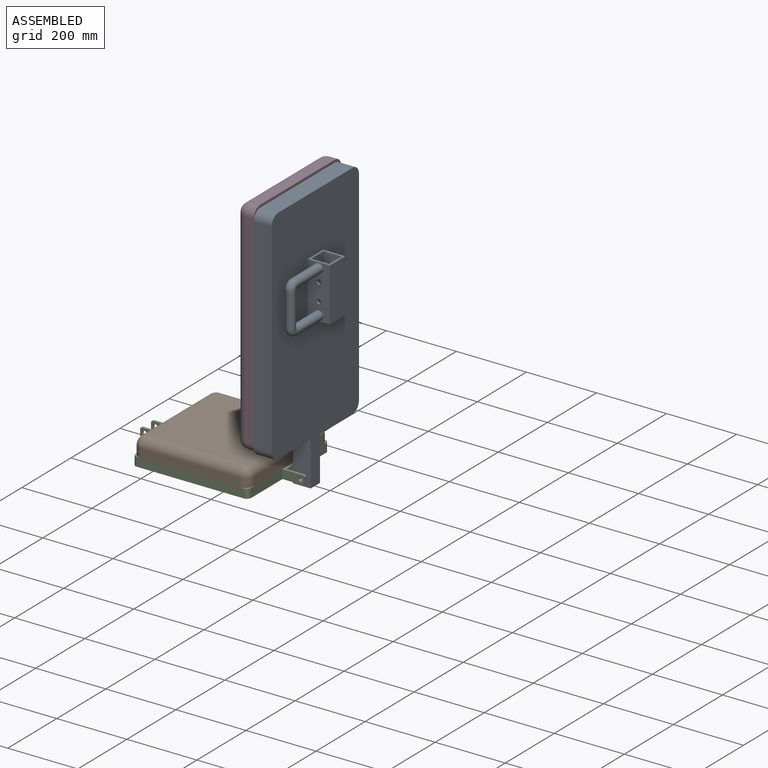
[diagram: assembled view]
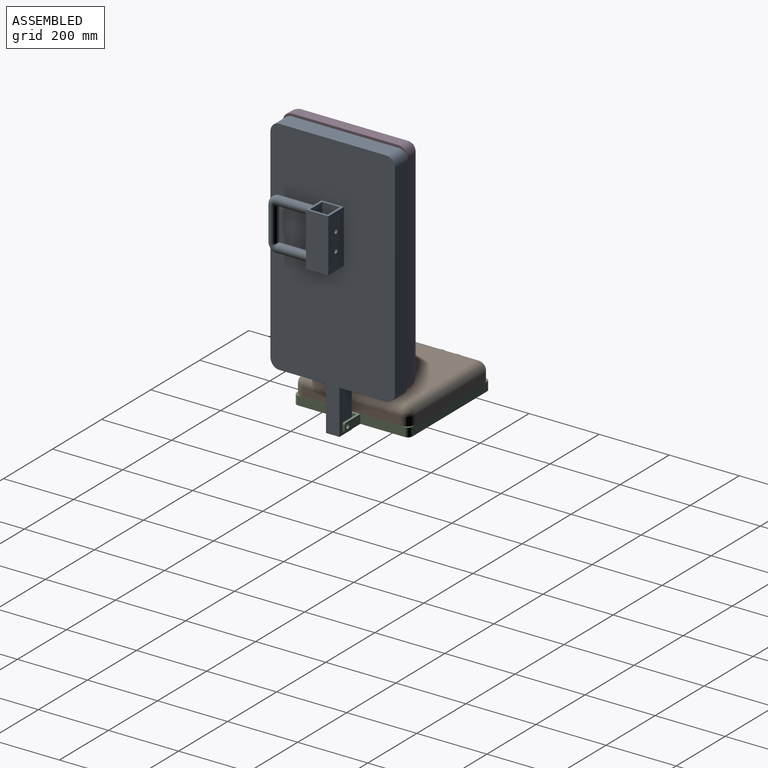
[diagram: assembled view, second angle]
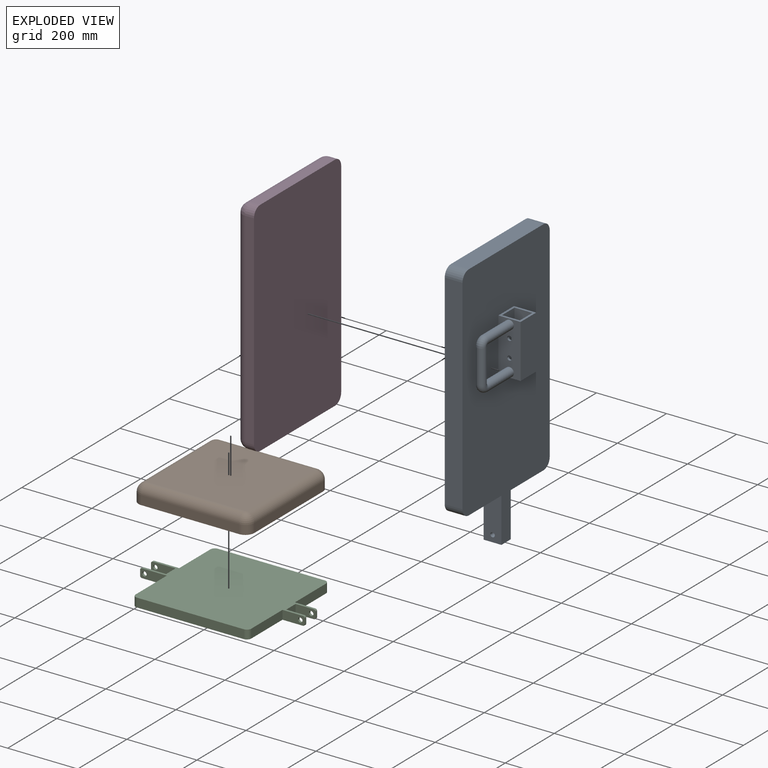
[diagram: exploded view]
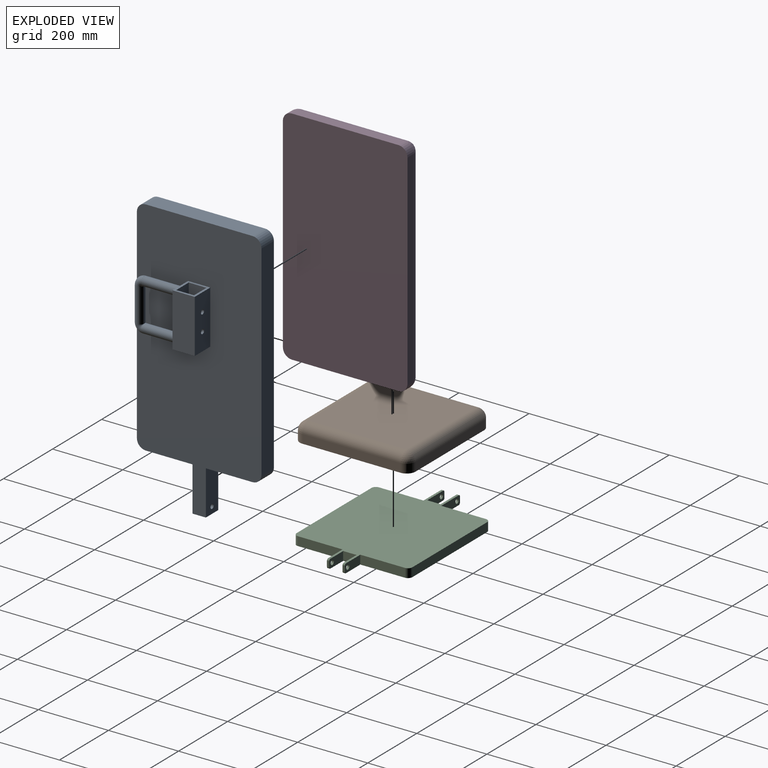
[diagram: exploded view, second angle]
ASSEMBLY  parts=4 mates=3
PART A: 35 faces, bbox 114.3x355.6x762 mm
  f0: plane 133.35x50.8mm, normal (0,0,-1), area 6774.2mm2, adj f2,f9,f10,f28
  f1: plane 133.35x50.8mm, normal (0,0,-1), area 6774.2mm2, adj f8,f9,f10,f27
  f2: cylinder r=25.4mm len=50.8mm, axis (-1,0,0), area 2026.8mm2, adj f0,f3,f9,f10
  f3: plane 584.2x50.8mm, normal (0,1,0), area 29677.4mm2, adj f2,f4,f9,f10
  f4: cylinder r=25.4mm len=50.8mm, axis (-1,0,0), area 2026.8mm2, adj f3,f5,f9,f10
  f5: plane 304.8x50.8mm, normal (0,0,1), area 15483.8mm2, adj f4,f6,f9,f10
  f6: cylinder r=25.4mm len=50.8mm, axis (-1,0,0), area 2026.8mm2, adj f5,f7,f9,f10
  f7: plane 584.2x50.8mm, normal (0,-1,0), area 29677.4mm2, adj f6,f8,f9,f10
  f8: cylinder r=25.4mm len=50.8mm, axis (-1,0,0), area 2026.8mm2, adj f1,f7,f9,f10
  f9: plane 762x355.6mm, normal (1,0,0), area 230090.9mm2, adj f0,f1,f2,f3,f4,f5,f6,f7
  f10: plane 762x355.6mm, normal (-1,0,0), area 220413.5mm2, adj f0,f1,f2,f3,f4,f5,f6,f7
  f11: plane 63.5x63.5mm, normal (0,0,-1), area 1451.6mm2, adj f10,f12,f14,f15,f16,f17,f18,f19
  f12: plane 152.4x63.5mm, normal (0,-1,0), area 9424mm2, adj f10,f11,f13,f15,f20,f21
  f13: plane 63.5x63.5mm, normal (0,0,1), area 1451.6mm2, adj f10,f12,f14,f15,f16,f17,f18,f19
  f14: plane 152.4x63.5mm, normal (0,1,0), area 8410.6mm2, adj f10,f11,f13,f15,f22,f23,f24,f26
  f15: plane 152.4x63.5mm, normal (-1,0,0), area 9677.4mm2, adj f11,f12,f13,f14
  f16: plane 152.4x50.8mm, normal (-1,0,0), area 7741.9mm2, adj f11,f13,f17,f19
  f17: plane 152.4x50.8mm, normal (0,-1,0), area 7488.6mm2, adj f11,f13,f16,f18,f22,f23
  f18: plane 152.4x50.8mm, normal (1,0,0), area 7741.9mm2, adj f11,f13,f17,f19
  f19: plane 152.4x50.8mm, normal (0,1,0), area 7488.6mm2, adj f11,f13,f16,f18,f20,f21
  f20: cylinder r=6.35mm len=12.7mm, axis (0,1,0), area 253.4mm2, adj f12,f19
  f21: cylinder r=6.35mm len=12.7mm, axis (0,1,0), area 253.4mm2, adj f12,f19
  f22: cylinder r=6.35mm len=12.7mm, axis (0,1,0), area 253.4mm2, adj f14,f17
  f23: cylinder r=6.35mm len=12.7mm, axis (0,1,0), area 253.4mm2, adj f14,f17
  f24: cylinder r=12.7mm len=101.6mm, axis (0,-1,0), area 8107.3mm2, adj f14,f25,f31
  f25: plane 25.4x12.76mm, normal (0,1,0), area 3.2mm2, adj f24,f34
  f26: cylinder r=12.7mm len=101.6mm, axis (0,-1,0), area 8107.3mm2, adj f14,f32
  f27: plane 127x50.8mm, normal (0,-1,0), area 6324.9mm2, adj f1,f9,f10,f29,f30
  f28: plane 127x50.8mm, normal (0,1,0), area 6324.9mm2, adj f0,f9,f10,f29,f30
  f29: plane 50.8x38.1mm, normal (0,0,-1), area 1935.5mm2, adj f9,f10,f27,f28
  f30: cylinder r=6.35mm len=38.1mm, axis (0,1,0), area 1520.1mm2, adj f27,f28
  f31: plane 25.4x12.76mm, normal (0,-1,0), area 3.2mm2, adj f24,f34
  f32: torus R=12.7mm, axis (1,0,0), area 1592.4mm2, adj f26,f33
  f33: cylinder r=12.7mm len=96.64mm, axis (0,0,1), area 7711.3mm2, adj f32,f34
  f34: torus R=12.7mm, axis (1,0,0), area 1592.4mm2, adj f25,f31,f33
PART B: 18 faces, bbox 330.2x330.2x50.8 mm
  f0: plane 279.4x25.4mm, normal (0,-1,0), area 7096.8mm2, adj f5,f8,f14,f17
  f1: plane 279.4x25.4mm, normal (1,0,0), area 7096.8mm2, adj f5,f11,f15,f17
  f2: plane 279.4x25.4mm, normal (0,1,0), area 7096.8mm2, adj f5,f6,f10,f11
  f3: plane 279.4x25.4mm, normal (-1,0,0), area 7096.8mm2, adj f5,f6,f8,f9
  f4: plane 279.4x279.4mm, normal (0,0,1), area 78064.4mm2, adj f9,f10,f14,f15
  f5: plane 330.2x330.2mm, normal (0,0,-1), area 108478.2mm2, adj f0,f1,f2,f3,f6,f8,f11,f17
  f6: cylinder r=25.4mm len=25.4mm, axis (0,0,-1), area 1013.4mm2, adj f2,f3,f5,f7
  f7: sphere r=25.4mm, area 1013.4mm2, adj f6,f9,f10
  f8: cylinder r=25.4mm len=25.4mm, axis (0,0,1), area 1013.4mm2, adj f0,f3,f5,f12
  f9: cylinder r=25.4mm len=279.4mm, axis (0,1,0), area 11147.6mm2, adj f3,f4,f7,f12
  f10: cylinder r=25.4mm len=279.4mm, axis (1,0,0), area 11147.6mm2, adj f2,f4,f7,f13
  f11: cylinder r=25.4mm len=25.4mm, axis (0,0,1), area 1013.4mm2, adj f1,f2,f5,f13
  f12: sphere r=25.4mm, area 1013.4mm2, adj f8,f9,f14
  f13: sphere r=25.4mm, area 1013.4mm2, adj f10,f11,f15
  f14: cylinder r=25.4mm len=279.4mm, axis (-1,0,0), area 11147.6mm2, adj f0,f4,f12,f16
  f15: cylinder r=25.4mm len=279.4mm, axis (0,-1,0), area 11147.6mm2, adj f1,f4,f13,f16
  f16: sphere r=25.4mm, area 1013.4mm2, adj f14,f15,f17
  f17: cylinder r=25.4mm len=25.4mm, axis (0,0,-1), area 1013.4mm2, adj f0,f1,f5,f16
PART C: 38 faces, bbox 469.9x330.2x25.4 mm
  f0: plane 459.74x330.2mm, normal (0,0,-1), area 111022.6mm2, adj f3,f5,f7,f8,f9,f10,f11,f12
  f1: plane 459.74x330.2mm, normal (0,0,1), area 111022.6mm2, adj f4,f5,f7,f8,f9,f10,f11,f12
  f2: plane 15.24x6.35mm, normal (1,0,0), area 96.8mm2, adj f3,f4,f28,f33
  f3: cylinder r=5.08mm len=6.35mm, axis (0,1,0), area 50.7mm2, adj f0,f2,f28,f33
  f4: cylinder r=5.08mm len=6.35mm, axis (0,-1,0), area 50.7mm2, adj f1,f2,f28,f33
  f5: plane 127x25.4mm, normal (1,0,0), area 3225.8mm2, adj f0,f1,f24,f28
  f6: plane 15.24x6.35mm, normal (-1,0,0), area 96.8mm2, adj f12,f17,f20,f21
  f7: plane 127x25.4mm, normal (-1,0,0), area 3225.8mm2, adj f0,f1,f12,f26
  f8: plane 304.8x25.4mm, normal (0,-1,0), area 7741.9mm2, adj f0,f1,f24,f27
  f9: plane 127x25.4mm, normal (1,0,0), area 3225.8mm2, adj f0,f1,f25,f29
  f10: plane 304.8x25.4mm, normal (0,1,0), area 7741.9mm2, adj f0,f1,f25,f26
  f11: plane 127x25.4mm, normal (-1,0,0), area 3225.8mm2, adj f0,f1,f13,f27
  f12: plane 76.2x25.4mm, normal (0,1,0), area 1797.7mm2, adj f0,f1,f6,f7,f20,f21,f22
  f13: plane 76.2x25.4mm, normal (0,-1,0), area 1797.7mm2, adj f0,f1,f11,f14,f18,f19,f23
  f14: plane 15.24x6.35mm, normal (-1,0,0), area 96.8mm2, adj f13,f15,f18,f19
  f15: plane 69.85x25.4mm, normal (0,1,0), area 1636.4mm2, adj f0,f1,f14,f16,f18,f19,f23
  f16: plane 38.1x25.4mm, normal (-1,0,0), area 967.7mm2, adj f0,f1,f15,f17
  f17: plane 69.85x25.4mm, normal (0,-1,0), area 1636.4mm2, adj f0,f1,f6,f16,f20,f21,f22
  f18: cylinder r=5.08mm len=6.35mm, axis (0,-1,0), area 50.7mm2, adj f1,f13,f14,f15
  f19: cylinder r=5.08mm len=6.35mm, axis (0,1,0), area 50.7mm2, adj f0,f13,f14,f15
  f20: cylinder r=5.08mm len=6.35mm, axis (0,1,0), area 50.7mm2, adj f0,f6,f12,f17
  f21: cylinder r=5.08mm len=6.35mm, axis (0,-1,0), area 50.7mm2, adj f1,f6,f12,f17
  f22: cylinder r=6.35mm len=12.7mm, axis (0,-1,0), area 253.4mm2, adj f12,f17
  f23: cylinder r=6.35mm len=12.7mm, axis (0,-1,0), area 253.4mm2, adj f13,f15
  f24: cylinder r=12.7mm len=25.4mm, axis (0,0,-1), area 506.7mm2, adj f0,f1,f5,f8
  f25: cylinder r=12.7mm len=25.4mm, axis (0,0,1), area 506.7mm2, adj f0,f1,f9,f10
  f26: cylinder r=12.7mm len=25.4mm, axis (0,0,-1), area 506.7mm2, adj f0,f1,f7,f10
  f27: cylinder r=12.7mm len=25.4mm, axis (0,0,1), area 506.7mm2, adj f0,f1,f8,f11
  f28: plane 63.5x25.4mm, normal (0,-1,0), area 1475.1mm2, adj f0,f1,f2,f3,f4,f5,f37
  f29: plane 63.5x25.4mm, normal (0,1,0), area 1475.1mm2, adj f0,f1,f9,f30,f31,f32,f36
  f30: plane 15.24x6.35mm, normal (1,0,0), area 96.8mm2, adj f29,f31,f32,f34
  f31: cylinder r=5.08mm len=6.35mm, axis (0,1,0), area 50.7mm2, adj f0,f29,f30,f34
  f32: cylinder r=5.08mm len=6.35mm, axis (0,-1,0), area 50.7mm2, adj f1,f29,f30,f34
  f33: plane 57.15x25.4mm, normal (0,1,0), area 1313.9mm2, adj f0,f1,f2,f3,f4,f35,f37
  f34: plane 57.15x25.4mm, normal (0,-1,0), area 1313.9mm2, adj f0,f1,f30,f31,f32,f35,f36
  f35: plane 38.1x25.4mm, normal (1,0,0), area 967.7mm2, adj f0,f1,f33,f34
  f36: cylinder r=6.35mm len=12.7mm, axis (0,-1,0), area 253.4mm2, adj f29,f34
  f37: cylinder r=6.35mm len=12.7mm, axis (0,-1,0), area 253.4mm2, adj f28,f33
PART D: 18 faces, bbox 50.8x355.6x635 mm
  f0: plane 584.2x25.4mm, normal (0,1,0), area 14838.7mm2, adj f5,f8,f14,f17
  f1: plane 304.8x25.4mm, normal (0,0,1), area 7741.9mm2, adj f5,f11,f15,f17
  f2: plane 584.2x25.4mm, normal (0,-1,0), area 14838.7mm2, adj f5,f6,f10,f11
  f3: plane 304.8x25.4mm, normal (0,0,-1), area 7741.9mm2, adj f5,f6,f8,f9
  f4: plane 584.2x304.8mm, normal (1,0,0), area 178064.2mm2, adj f9,f10,f14,f15
  f5: plane 635x355.6mm, normal (-1,0,0), area 225252.2mm2, adj f0,f1,f2,f3,f6,f8,f11,f17
  f6: cylinder r=25.4mm len=25.4mm, axis (1,0,0), area 1013.4mm2, adj f2,f3,f5,f7
  f7: sphere r=25.4mm, area 1013.4mm2, adj f6,f9,f10
  f8: cylinder r=25.4mm len=25.4mm, axis (-1,0,0), area 1013.4mm2, adj f0,f3,f5,f12
  f9: cylinder r=25.4mm len=304.8mm, axis (0,-1,0), area 12161mm2, adj f3,f4,f7,f12
  f10: cylinder r=25.4mm len=584.2mm, axis (0,0,1), area 23308.5mm2, adj f2,f4,f7,f13
  f11: cylinder r=25.4mm len=25.4mm, axis (-1,0,0), area 1013.4mm2, adj f1,f2,f5,f13
  f12: sphere r=25.4mm, area 1013.4mm2, adj f8,f9,f14
  f13: sphere r=25.4mm, area 1013.4mm2, adj f10,f11,f15
  f14: cylinder r=25.4mm len=584.2mm, axis (0,0,-1), area 23308.5mm2, adj f0,f4,f12,f16
  f15: cylinder r=25.4mm len=304.8mm, axis (0,1,0), area 12161mm2, adj f1,f4,f13,f16
  f16: sphere r=25.4mm, area 1013.4mm2, adj f14,f15,f17
  f17: cylinder r=25.4mm len=25.4mm, axis (1,0,0), area 1013.4mm2, adj f0,f1,f5,f16
PLACE A rot(axis=(0,0,-1),180deg) t=(-586.5,149.36,326.41)mm
PLACE B t=(-828.13,149.36,-111.74)mm
PLACE C t=(-827.8,149.36,-111.74)mm
PLACE D rot(axis=(0,0,-1),180deg) t=(-586.5,149.36,333.64)mm
MATE fastened A.f9 <-> D.f5  axis (-1,0,0) through (-637.3,149.36,318.4)mm
MATE fastened B.f5 <-> C.f1  axis (0,0,-1) through (-828.13,149.36,-86.34)mm
MATE revolute A.f30 <-> C.f36  axis (0,1,0) through (-611.9,168.41,-99.04)mm
